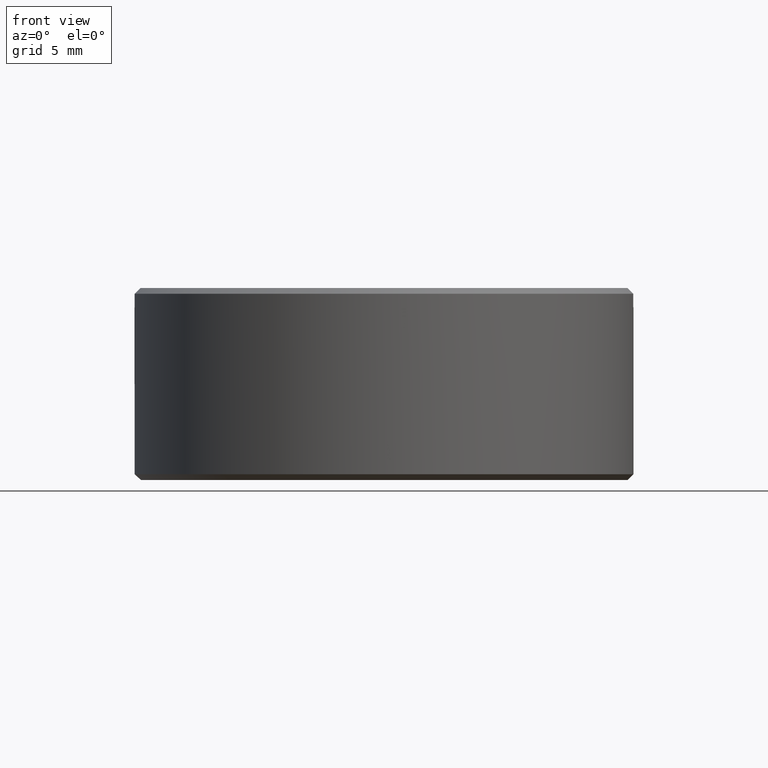
[diagram: clean part render]
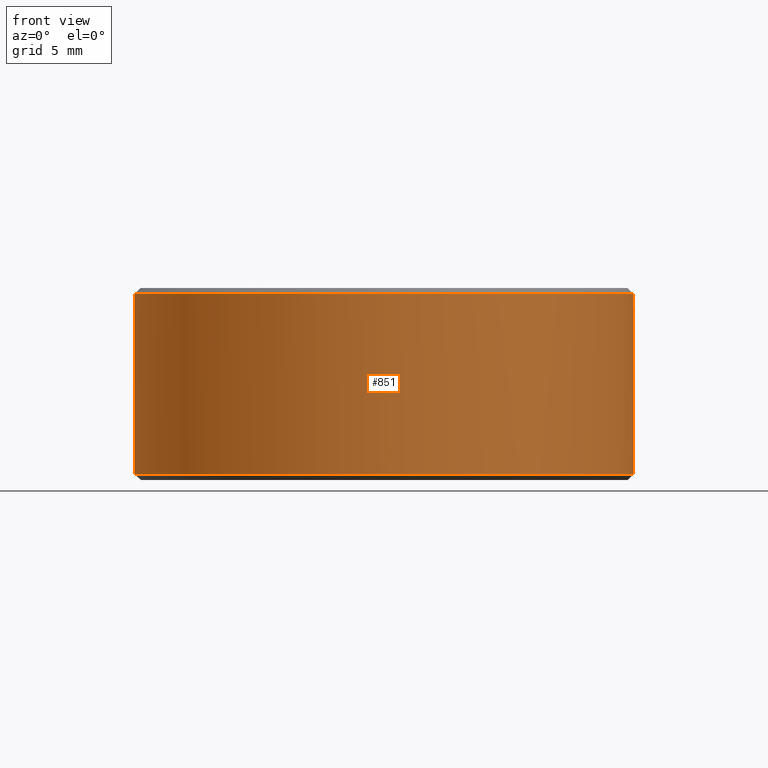
[diagram: same view with one face highlighted and labeled with its STEP entity id]
A machine part, front view. The second image highlights one B-rep face of the part: STEP entity #851.
In plain terms, the highlighted cylindrical surface (bore or boss wall) has radius 13 mm, axis along (-0, -0, -1).
Its self-contained STEP definition (entity closure, byte-faithful):
#12 = DIRECTION ( 'NONE',  ( 1.000000000000000000, 0.000000000000000000, -6.672013369141564231E-17 ) ) ;
#49 = EDGE_CURVE ( 'NONE', #832, #1256, #515, .T. ) ;
#101 = CARTESIAN_POINT ( 'NONE',  ( -12.98836017363239037, 0.5500000000000000444, 4.699999999999988631 ) ) ;
#144 = EDGE_CURVE ( 'NONE', #1256, #538, #1398, .T. ) ;
#149 = DIRECTION ( 'NONE',  ( -1.000000000000000000, 1.687538997430237941E-14, 0.000000000000000000 ) ) ;
#154 = FACE_OUTER_BOUND ( 'NONE', #1213, .T. ) ;
#171 = LINE ( 'NONE', #673, #716 ) ;
#179 = DIRECTION ( 'NONE',  ( -0.000000000000000000, 0.000000000000000000, -1.000000000000000000 ) ) ;
#209 = AXIS2_PLACEMENT_3D ( 'NONE', #1064, #336, #439 ) ;
#256 = CIRCLE ( 'NONE', #993, 13.00000000000000355 ) ;
#266 = DIRECTION ( 'NONE',  ( -1.000000000000000000, 0.000000000000000000, 0.000000000000000000 ) ) ;
#274 = CARTESIAN_POINT ( 'NONE',  ( 12.98836017363239037, -0.5500000000000000444, 4.000000000000000000 ) ) ;
#290 = DIRECTION ( 'NONE',  ( -1.000000000000000000, 0.000000000000000000, 0.000000000000000000 ) ) ;
#316 = CARTESIAN_POINT ( 'NONE',  ( -12.98836017363239037, -0.5500000000000000444, 4.000000000000000000 ) ) ;
#319 = CIRCLE ( 'NONE', #1567, 13.00000000000000355 ) ;
#336 = DIRECTION ( 'NONE',  ( -0.000000000000000000, -0.000000000000000000, -1.000000000000000000 ) ) ;
#364 = VERTEX_POINT ( 'NONE', #1505 ) ;
#374 = AXIS2_PLACEMENT_3D ( 'NONE', #1218, #1587, #1597 ) ;
#382 = CARTESIAN_POINT ( 'NONE',  ( 12.98836017363239037, 0.5500000000000000444, 4.699999999999988631 ) ) ;
#396 = ORIENTED_EDGE ( 'NONE', *, *, #763, .F. ) ;
#417 = CARTESIAN_POINT ( 'NONE',  ( 0.000000000000000000, 0.000000000000000000, 4.000000000000000000 ) ) ;
#418 = DIRECTION ( 'NONE',  ( -0.000000000000000000, -0.000000000000000000, -1.000000000000000000 ) ) ;
#422 = CYLINDRICAL_SURFACE ( 'NONE', #578, 13.00000000000000355 ) ;
#426 = VECTOR ( 'NONE', #1423, 1000.000000000000000 ) ;
#438 = CARTESIAN_POINT ( 'NONE',  ( 0.000000000000000000, 0.000000000000000000, 4.699999999999987743 ) ) ;
#439 = DIRECTION ( 'NONE',  ( -1.000000000000000000, 0.000000000000000000, 0.000000000000000000 ) ) ;
#458 = ORIENTED_EDGE ( 'NONE', *, *, #1262, .T. ) ;
#460 = VERTEX_POINT ( 'NONE', #1039 ) ;
#462 = CARTESIAN_POINT ( 'NONE',  ( 13.00000000000000355, 0.000000000000000000, -4.700000000000000178 ) ) ;
#503 = AXIS2_PLACEMENT_3D ( 'NONE', #438, #418, #290 ) ;
#504 = ORIENTED_EDGE ( 'NONE', *, *, #144, .T. ) ;
#515 = LINE ( 'NONE', #635, #1324 ) ;
#522 = DIRECTION ( 'NONE',  ( 0.000000000000000000, 0.000000000000000000, 1.000000000000000000 ) ) ;
#538 = VERTEX_POINT ( 'NONE', #601 ) ;
#557 = CARTESIAN_POINT ( 'NONE',  ( 12.98836017363239037, 0.5500000000000000444, 4.000000000000000000 ) ) ;
#575 = CARTESIAN_POINT ( 'NONE',  ( -12.98836017363239037, 0.5500000000000000444, 4.000000000000000000 ) ) ;
#578 = AXIS2_PLACEMENT_3D ( 'NONE', #1272, #912, #266 ) ;
#601 = CARTESIAN_POINT ( 'NONE',  ( -12.98836017363239037, -0.5500000000000000444, 4.699999999999988631 ) ) ;
#635 = CARTESIAN_POINT ( 'NONE',  ( 12.98836017363239037, -0.5500000000000000444, 4.000000000000000000 ) ) ;
#673 = CARTESIAN_POINT ( 'NONE',  ( 12.98836017363239037, 0.5500000000000000444, 4.000000000000000000 ) ) ;
#716 = VECTOR ( 'NONE', #179, 1000.000000000000000 ) ;
#748 = ORIENTED_EDGE ( 'NONE', *, *, #1008, .T. ) ;
#763 = EDGE_CURVE ( 'NONE', #1451, #1451, #256, .T. ) ;
#781 = VERTEX_POINT ( 'NONE', #382 ) ;
#832 = VERTEX_POINT ( 'NONE', #274 ) ;
#851 = ADVANCED_FACE ( 'NONE', ( #1290, #154 ), #422, .T. ) ;
#890 = DIRECTION ( 'NONE',  ( 0.000000000000000000, 0.000000000000000000, -1.000000000000000000 ) ) ;
#904 = EDGE_CURVE ( 'NONE', #781, #1114, #171, .T. ) ;
#912 = DIRECTION ( 'NONE',  ( -0.000000000000000000, -0.000000000000000000, -1.000000000000000000 ) ) ;
#922 = CIRCLE ( 'NONE', #374, 13.00000000000000355 ) ;
#958 = ORIENTED_EDGE ( 'NONE', *, *, #1498, .F. ) ;
#979 = EDGE_LOOP ( 'NONE', ( #958, #1540, #504, #458, #1390, #748, #1274, #1604 ) ) ;
#993 = AXIS2_PLACEMENT_3D ( 'NONE', #1007, #890, #12 ) ;
#1007 = CARTESIAN_POINT ( 'NONE',  ( 0.000000000000000000, 0.000000000000000000, -4.699999999999999289 ) ) ;
#1008 = EDGE_CURVE ( 'NONE', #460, #1291, #1564, .T. ) ;
#1039 = CARTESIAN_POINT ( 'NONE',  ( -12.98836017363239037, 0.5500000000000000444, 4.000000000000000000 ) ) ;
#1064 = CARTESIAN_POINT ( 'NONE',  ( 0.000000000000000000, 0.000000000000000000, 4.699999999999987743 ) ) ;
#1114 = VERTEX_POINT ( 'NONE', #557 ) ;
#1154 = EDGE_CURVE ( 'NONE', #1291, #781, #1200, .T. ) ;
#1187 = LINE ( 'NONE', #316, #1226 ) ;
#1200 = CIRCLE ( 'NONE', #503, 13.00000000000000355 ) ;
#1213 = EDGE_LOOP ( 'NONE', ( #396 ) ) ;
#1218 = CARTESIAN_POINT ( 'NONE',  ( 0.000000000000000000, 0.000000000000000000, 4.000000000000000000 ) ) ;
#1226 = VECTOR ( 'NONE', #1332, 1000.000000000000000 ) ;
#1229 = EDGE_CURVE ( 'NONE', #460, #364, #922, .T. ) ;
#1256 = VERTEX_POINT ( 'NONE', #1452 ) ;
#1262 = EDGE_CURVE ( 'NONE', #538, #364, #1187, .T. ) ;
#1272 = CARTESIAN_POINT ( 'NONE',  ( 0.000000000000000000, 0.000000000000000000, 5.000000000000000000 ) ) ;
#1274 = ORIENTED_EDGE ( 'NONE', *, *, #1154, .T. ) ;
#1290 = FACE_OUTER_BOUND ( 'NONE', #979, .T. ) ;
#1291 = VERTEX_POINT ( 'NONE', #101 ) ;
#1324 = VECTOR ( 'NONE', #1404, 1000.000000000000000 ) ;
#1332 = DIRECTION ( 'NONE',  ( 0.000000000000000000, -0.000000000000000000, -1.000000000000000000 ) ) ;
#1390 = ORIENTED_EDGE ( 'NONE', *, *, #1229, .F. ) ;
#1398 = CIRCLE ( 'NONE', #209, 13.00000000000000355 ) ;
#1404 = DIRECTION ( 'NONE',  ( -0.000000000000000000, 0.000000000000000000, 1.000000000000000000 ) ) ;
#1423 = DIRECTION ( 'NONE',  ( 0.000000000000000000, -0.000000000000000000, 1.000000000000000000 ) ) ;
#1451 = VERTEX_POINT ( 'NONE', #462 ) ;
#1452 = CARTESIAN_POINT ( 'NONE',  ( 12.98836017363239037, -0.5500000000000000444, 4.699999999999988631 ) ) ;
#1498 = EDGE_CURVE ( 'NONE', #832, #1114, #319, .T. ) ;
#1505 = CARTESIAN_POINT ( 'NONE',  ( -12.98836017363239037, -0.5500000000000000444, 4.000000000000000000 ) ) ;
#1540 = ORIENTED_EDGE ( 'NONE', *, *, #49, .T. ) ;
#1564 = LINE ( 'NONE', #575, #426 ) ;
#1567 = AXIS2_PLACEMENT_3D ( 'NONE', #417, #522, #149 ) ;
#1587 = DIRECTION ( 'NONE',  ( 0.000000000000000000, 0.000000000000000000, 1.000000000000000000 ) ) ;
#1597 = DIRECTION ( 'NONE',  ( -1.000000000000000000, 0.000000000000000000, 0.000000000000000000 ) ) ;
#1604 = ORIENTED_EDGE ( 'NONE', *, *, #904, .T. ) ;